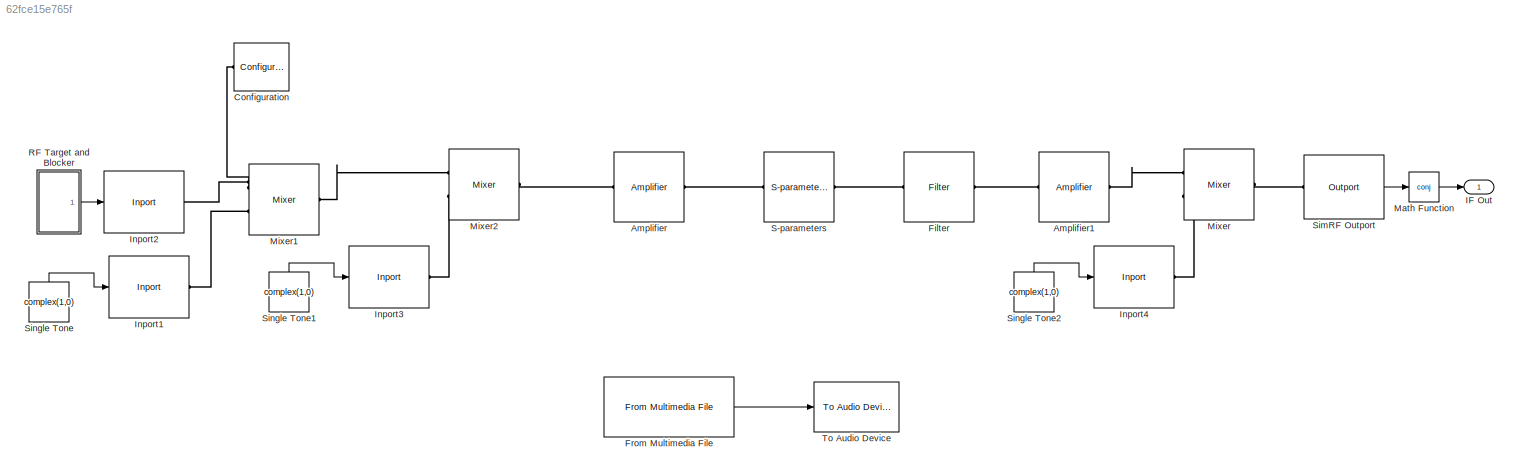
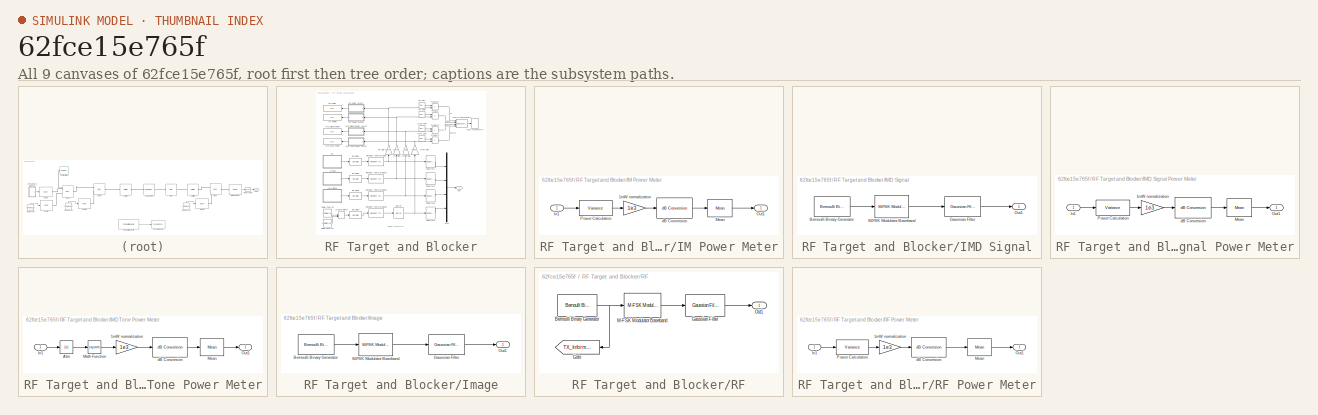
[diagram: thumbnail index - all 9 canvases of the model, root first then tree order]
MODEL slx_62fce15e765f
KIND model
CONFIG AbsTol = auto
CONFIG FixedStep = auto
CONFIG MaxStep = auto
CONFIG MinStep = auto
CONFIG RelTol = 1e-3
CONFIG SampleTimeConstraint = Unconstrained
CONFIG Solver = VariableStepAuto
CONFIG SolverMode = Auto
CONFIG SolverName = VariableStepAuto
CONFIG StartTime = 0.0
CONFIG StopTime = 10.0
BLOCK [Reference] Amplifier  REF=simrfV2elements/Amplifier
  Ports = [0, 0, 0, 0, 0, 1, 1]
  SourceBlock = simrfV2elements/Amplifier
  SourceType = Amplifier
BLOCK [Reference] Amplifier1  REF=simrfV2elements/Amplifier
  Ports = [0, 0, 0, 0, 0, 1, 1]
  SourceBlock = simrfV2elements/Amplifier
  SourceType = Amplifier
BLOCK [Reference] Configuration  REF=simrfV2util1/Configuration
  Ports = [0, 0, 0, 0, 0, 1]
  SourceBlock = simrfV2util1/Configuration
  SourceType = Configuration
BLOCK [Reference] Filter  REF=simrfV2elements/Filter
  Ports = [0, 0, 0, 0, 0, 1, 1]
  SourceBlock = simrfV2elements/Filter
  SourceType = Filter
BLOCK [Reference] From Multimedia File  REF=dspvision/From Multimedia File
  Ports = [0, 1]
  SourceBlock = dspvision/From Multimedia File
  SourceType = From Multimedia File
BLOCK [Outport] IF Out
  IconDisplay = Port number
BLOCK [Reference] Inport1  REF=simrfV2util1/Inport
  Ports = [1, 0, 0, 0, 0, 0, 1]
  SourceBlock = simrfV2util1/Inport
  SourceType = Inport
BLOCK [Reference] Inport2  REF=simrfV2util1/Inport
  Ports = [1, 0, 0, 0, 0, 0, 1]
  SourceBlock = simrfV2util1/Inport
  SourceType = Inport
BLOCK [Reference] Inport3  REF=simrfV2util1/Inport
  Ports = [1, 0, 0, 0, 0, 0, 1]
  SourceBlock = simrfV2util1/Inport
  SourceType = Inport
BLOCK [Reference] Inport4  REF=simrfV2util1/Inport
  Ports = [1, 0, 0, 0, 0, 0, 1]
  SourceBlock = simrfV2util1/Inport
  SourceType = Inport
BLOCK [Math] Math Function
  Operator = conj
  Ports = [1, 1]
BLOCK [Reference] Mixer  REF=simrfV2elements/Mixer
  Ports = [0, 0, 0, 0, 0, 2, 1]
  SourceBlock = simrfV2elements/Mixer
  SourceType = Mixer
BLOCK [Reference] Mixer1  REF=simrfV2elements/Mixer
  Ports = [0, 0, 0, 0, 0, 2, 1]
  SourceBlock = simrfV2elements/Mixer
  SourceType = Mixer
BLOCK [Reference] Mixer2  REF=simrfV2elements/Mixer
  Ports = [0, 0, 0, 0, 0, 2, 1]
  SourceBlock = simrfV2elements/Mixer
  SourceType = Mixer
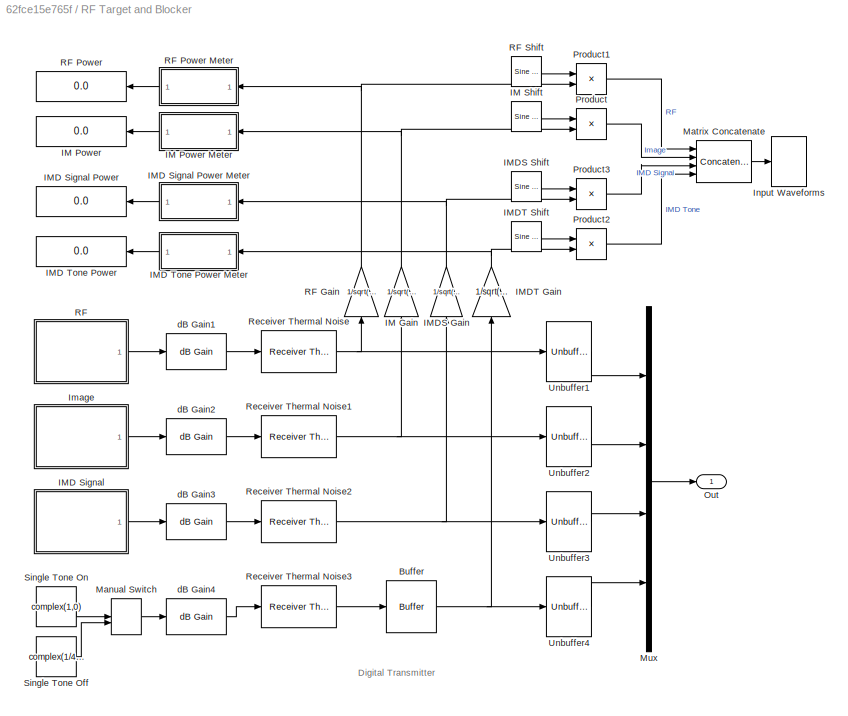
BLOCK [SubSystem] RF Target and Blocker
  Ports = [0, 1]
  RequestExecContextInheritance = off
  Variant = off
BLOCK [Buffer] RF Target and Blocker/Buffer
  N = SLIF_PSF_SampPerSym*SLIF_Frame
  TreatMby1Signals = One channel
BLOCK [Gain] RF Target and Blocker/IM Gain
  Gain = 1/sqrt(2)
  OutDataTypeStr = Inherit: Inherit via internal rule
  ParamDataTypeStr = Inherit: Inherit via internal rule
  SaturateOnIntegerOverflow = off
BLOCK [Display] RF Target and Blocker/IM Power
  Decimation = 1
  Ports = [1]
BLOCK [SubSystem] RF Target and Blocker/IM Power Meter
  Ports = [1, 1]
  RequestExecContextInheritance = off
  Variant = off
BLOCK [Gain] RF Target and Blocker/IM Power Meter/1mW normalization
  Gain = 1e3
  OutDataTypeStr = Inherit: Inherit via internal rule
  ParamDataTypeStr = Inherit: Inherit via internal rule
  SaturateOnIntegerOverflow = off
BLOCK [Inport] RF Target and Blocker/IM Power Meter/In1
  IconDisplay = Port number
BLOCK [Reference] RF Target and Blocker/IM Power Meter/Mean  REF=dspstat3/Mean
  Ports = [1, 1]
  SourceBlock = dspstat3/Mean
  SourceType = Mean
  UserDataPersistent = on
BLOCK [Outport] RF Target and Blocker/IM Power Meter/Out1
  IconDisplay = Port number
BLOCK [Reference] RF Target and Blocker/IM Power Meter/Power Calculation  REF=dspstat3/Variance
  Ports = [1, 1]
  SourceBlock = dspstat3/Variance
  SourceType = Variance
  UserDataPersistent = on
BLOCK [Reference] RF Target and Blocker/IM Power Meter/dB Conversion  REF=dspmathops/dB Conversion
  Ports = [1, 1]
  SourceBlock = dspmathops/dB Conversion
  SourceType = dB Conversion
BLOCK [Reference] RF Target and Blocker/IM Shift  REF=dspsrcs4/Sine Wave
  Ports = [0, 1]
  SourceBlock = dspsrcs4/Sine Wave
  SourceType = Sine Wave
BLOCK [SubSystem] RF Target and Blocker/IMD Signal
  Ports = [0, 1]
  RequestExecContextInheritance = off
  Variant = off
BLOCK [Display] RF Target and Blocker/IMD Signal Power
  Decimation = 1
  Ports = [1]
BLOCK [SubSystem] RF Target and Blocker/IMD Signal Power Meter
  Ports = [1, 1]
  RequestExecContextInheritance = off
  Variant = off
BLOCK [Gain] RF Target and Blocker/IMD Signal Power Meter/1mW normalization
  Gain = 1e3
  OutDataTypeStr = Inherit: Inherit via internal rule
  ParamDataTypeStr = Inherit: Inherit via internal rule
  SaturateOnIntegerOverflow = off
BLOCK [Inport] RF Target and Blocker/IMD Signal Power Meter/In1
  IconDisplay = Port number
BLOCK [Reference] RF Target and Blocker/IMD Signal Power Meter/Mean  REF=dspstat3/Mean
  Ports = [1, 1]
  SourceBlock = dspstat3/Mean
  SourceType = Mean
  UserDataPersistent = on
BLOCK [Outport] RF Target and Blocker/IMD Signal Power Meter/Out1
  IconDisplay = Port number
BLOCK [Reference] RF Target and Blocker/IMD Signal Power Meter/Power Calculation  REF=dspstat3/Variance
  Ports = [1, 1]
  SourceBlock = dspstat3/Variance
  SourceType = Variance
  UserDataPersistent = on
BLOCK [Reference] RF Target and Blocker/IMD Signal Power Meter/dB Conversion  REF=dspmathops/dB Conversion
  Ports = [1, 1]
  SourceBlock = dspmathops/dB Conversion
  SourceType = dB Conversion
BLOCK [Reference] RF Target and Blocker/IMD Signal/Bernoulli Binary Generator  REF=commrandsrc2/Bernoulli Binary
Generator
  Ports = [0, 1]
  SourceBlock = commrandsrc2/Bernoulli Binary\nGenerator
  SourceType = Bernoulli Binary Generator
BLOCK [Reference] RF Target and Blocker/IMD Signal/Gaussian Filter  REF=commobslib/Gaussian Filter
  Ports = [1, 1]
  SourceBlock = commobslib/Gaussian Filter
  SourceType = Gaussian Filter
  UserDataPersistent = on
BLOCK [Reference] RF Target and Blocker/IMD Signal/M-FSK Modulator Baseband  REF=commdigbbndfm2/M-FSK
Modulator
Baseband
  Ports = [1, 1]
  SourceBlock = commdigbbndfm2/M-FSK\nModulator\nBaseband
  SourceType = M-FSK Modulator Baseband
  UserDataPersistent = on
BLOCK [Outport] RF Target and Blocker/IMD Signal/Out1
  IconDisplay = Port number
BLOCK [Display] RF Target and Blocker/IMD Tone Power
  Decimation = 1
  Ports = [1]
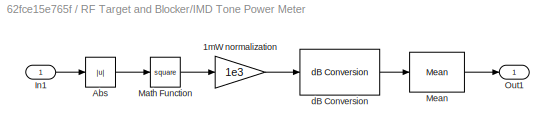
BLOCK [SubSystem] RF Target and Blocker/IMD Tone Power Meter
  Ports = [1, 1]
  RequestExecContextInheritance = off
  Variant = off
BLOCK [Gain] RF Target and Blocker/IMD Tone Power Meter/1mW normalization
  Gain = 1e3
  OutDataTypeStr = Inherit: Inherit via internal rule
  ParamDataTypeStr = Inherit: Inherit via internal rule
  SaturateOnIntegerOverflow = off
BLOCK [Abs] RF Target and Blocker/IMD Tone Power Meter/Abs
  SaturateOnIntegerOverflow = off
BLOCK [Inport] RF Target and Blocker/IMD Tone Power Meter/In1
  IconDisplay = Port number
BLOCK [Math] RF Target and Blocker/IMD Tone Power Meter/Math Function
  Operator = square
  Ports = [1, 1]
BLOCK [Reference] RF Target and Blocker/IMD Tone Power Meter/Mean  REF=dspstat3/Mean
  Ports = [1, 1]
  SourceBlock = dspstat3/Mean
  SourceType = Mean
  UserDataPersistent = on
BLOCK [Outport] RF Target and Blocker/IMD Tone Power Meter/Out1
  IconDisplay = Port number
BLOCK [Reference] RF Target and Blocker/IMD Tone Power Meter/dB Conversion  REF=dspmathops/dB Conversion
  Ports = [1, 1]
  SourceBlock = dspmathops/dB Conversion
  SourceType = dB Conversion
BLOCK [Gain] RF Target and Blocker/IMDS Gain
  Gain = 1/sqrt(2)
  OutDataTypeStr = Inherit: Inherit via internal rule
  ParamDataTypeStr = Inherit: Inherit via internal rule
  SaturateOnIntegerOverflow = off
BLOCK [Reference] RF Target and Blocker/IMDS Shift  REF=dspsrcs4/Sine Wave
  Ports = [0, 1]
  SourceBlock = dspsrcs4/Sine Wave
  SourceType = Sine Wave
BLOCK [Gain] RF Target and Blocker/IMDT Gain
  Gain = 1/sqrt(2)
  OutDataTypeStr = Inherit: Inherit via internal rule
  ParamDataTypeStr = Inherit: Inherit via internal rule
  SaturateOnIntegerOverflow = off
BLOCK [Reference] RF Target and Blocker/IMDT Shift  REF=dspsrcs4/Sine Wave
  Ports = [0, 1]
  SourceBlock = dspsrcs4/Sine Wave
  SourceType = Sine Wave
BLOCK [SubSystem] RF Target and Blocker/Image
  Ports = [0, 1]
  RequestExecContextInheritance = off
  Variant = off
BLOCK [Reference] RF Target and Blocker/Image/Bernoulli Binary Generator  REF=commrandsrc2/Bernoulli Binary
Generator
  Ports = [0, 1]
  SourceBlock = commrandsrc2/Bernoulli Binary\nGenerator
  SourceType = Bernoulli Binary Generator
BLOCK [Reference] RF Target and Blocker/Image/Gaussian Filter  REF=commobslib/Gaussian Filter
  Ports = [1, 1]
  SourceBlock = commobslib/Gaussian Filter
  SourceType = Gaussian Filter
  UserDataPersistent = on
BLOCK [Reference] RF Target and Blocker/Image/M-FSK Modulator Baseband  REF=commdigbbndfm2/M-FSK
Modulator
Baseband
  Ports = [1, 1]
  SourceBlock = commdigbbndfm2/M-FSK\nModulator\nBaseband
  SourceType = M-FSK Modulator Baseband
  UserDataPersistent = on
BLOCK [Outport] RF Target and Blocker/Image/Out1
  IconDisplay = Port number
BLOCK [SpectrumAnalyzer] RF Target and Blocker/Input Waveforms
  Ports = [1]
  ScopeSpecificationString = spbscopes.SpectrumAnalyzerBlockCfg('CurrentConfiguration', extmgr.ConfigurationSet(extmgr.Configuration('Core','General UI',true,'ShowNewAction',false,'ShowLoadConfigSet',false,'ShowSaveConfigSet',false,'ShowConfiguration',false,'ShowCloseAll',false,'DisplayFullSourceName',true,'MessageLogAutoOpenMode','for warn/fail messages','MessageLogDialogPosition',[20 520 450 500],'ShowMainToolbar',true,'Sho...<+8134ch>
BLOCK [ManualSwitch] RF Target and Blocker/Manual Switch
  CurrentSetting = 0
BLOCK [Concatenate] RF Target and Blocker/Matrix Concatenate
  ConcatenateDimension = 2
  Mode = Multidimensional array
  NumInputs = 4
  Ports = [4, 1]
BLOCK [Mux] RF Target and Blocker/Mux
  DisplayOption = bar
  Ports = [4, 1]
BLOCK [Outport] RF Target and Blocker/Out
  IconDisplay = Port number
BLOCK [Product] RF Target and Blocker/Product
  InputSameDT = off
  OutDataTypeStr = Inherit: Inherit via internal rule
  Ports = [2, 1]
  SaturateOnIntegerOverflow = off
BLOCK [Product] RF Target and Blocker/Product1
  InputSameDT = off
  OutDataTypeStr = Inherit: Inherit via internal rule
  Ports = [2, 1]
  SaturateOnIntegerOverflow = off
BLOCK [Product] RF Target and Blocker/Product2
  InputSameDT = off
  OutDataTypeStr = Inherit: Inherit via internal rule
  Ports = [2, 1]
  SaturateOnIntegerOverflow = off
BLOCK [Product] RF Target and Blocker/Product3
  InputSameDT = off
  OutDataTypeStr = Inherit: Inherit via internal rule
  Ports = [2, 1]
  SaturateOnIntegerOverflow = off
BLOCK [SubSystem] RF Target and Blocker/RF
  Ports = [0, 1]
  RequestExecContextInheritance = off
  Variant = off
BLOCK [Gain] RF Target and Blocker/RF Gain
  Gain = 1/sqrt(2)
  OutDataTypeStr = Inherit: Inherit via internal rule
  ParamDataTypeStr = Inherit: Inherit via internal rule
  SaturateOnIntegerOverflow = off
BLOCK [Display] RF Target and Blocker/RF Power
  Decimation = 1
  Ports = [1]
BLOCK [SubSystem] RF Target and Blocker/RF Power Meter
  Ports = [1, 1]
  RequestExecContextInheritance = off
  Variant = off
BLOCK [Gain] RF Target and Blocker/RF Power Meter/1mW normalization
  Gain = 1e3
  OutDataTypeStr = Inherit: Inherit via internal rule
  ParamDataTypeStr = Inherit: Inherit via internal rule
  SaturateOnIntegerOverflow = off
BLOCK [Inport] RF Target and Blocker/RF Power Meter/In1
  IconDisplay = Port number
BLOCK [Reference] RF Target and Blocker/RF Power Meter/Mean  REF=dspstat3/Mean
  Ports = [1, 1]
  SourceBlock = dspstat3/Mean
  SourceType = Mean
  UserDataPersistent = on
BLOCK [Outport] RF Target and Blocker/RF Power Meter/Out1
  IconDisplay = Port number
BLOCK [Reference] RF Target and Blocker/RF Power Meter/Power Calculation  REF=dspstat3/Variance
  Ports = [1, 1]
  SourceBlock = dspstat3/Variance
  SourceType = Variance
  UserDataPersistent = on
BLOCK [Reference] RF Target and Blocker/RF Power Meter/dB Conversion  REF=dspmathops/dB Conversion
  Ports = [1, 1]
  SourceBlock = dspmathops/dB Conversion
  SourceType = dB Conversion
BLOCK [Reference] RF Target and Blocker/RF Shift  REF=dspsrcs4/Sine Wave
  Ports = [0, 1]
  SourceBlock = dspsrcs4/Sine Wave
  SourceType = Sine Wave
BLOCK [Reference] RF Target and Blocker/RF/Bernoulli Binary Generator  REF=commrandsrc2/Bernoulli Binary
Generator
  Ports = [0, 1]
  SourceBlock = commrandsrc2/Bernoulli Binary\nGenerator
  SourceType = Bernoulli Binary Generator
BLOCK [Reference] RF Target and Blocker/RF/Gaussian Filter  REF=commobslib/Gaussian Filter
  Ports = [1, 1]
  SourceBlock = commobslib/Gaussian Filter
  SourceType = Gaussian Filter
  UserDataPersistent = on
BLOCK [Goto] RF Target and Blocker/RF/Goto
  GotoTag = TX_Information
  TagVisibility = global
BLOCK [Reference] RF Target and Blocker/RF/M-FSK Modulator Baseband  REF=commdigbbndfm2/M-FSK
Modulator
Baseband
  Ports = [1, 1]
  SourceBlock = commdigbbndfm2/M-FSK\nModulator\nBaseband
  SourceType = M-FSK Modulator Baseband
  UserDataPersistent = on
BLOCK [Outport] RF Target and Blocker/RF/Out1
  IconDisplay = Port number
BLOCK [Reference] RF Target and Blocker/Receiver Thermal Noise  REF=commrflib2/Receiver
Thermal Noise
  Ports = [1, 1]
  SourceBlock = commrflib2/Receiver\nThermal Noise
  SourceType = Receiver Thermal Noise
BLOCK [Reference] RF Target and Blocker/Receiver Thermal Noise1  REF=commrflib2/Receiver
Thermal Noise
  Ports = [1, 1]
  SourceBlock = commrflib2/Receiver\nThermal Noise
  SourceType = Receiver Thermal Noise
BLOCK [Reference] RF Target and Blocker/Receiver Thermal Noise2  REF=commrflib2/Receiver
Thermal Noise
  Ports = [1, 1]
  SourceBlock = commrflib2/Receiver\nThermal Noise
  SourceType = Receiver Thermal Noise
BLOCK [Reference] RF Target and Blocker/Receiver Thermal Noise3  REF=commrflib2/Receiver
Thermal Noise
  Ports = [1, 1]
  SourceBlock = commrflib2/Receiver\nThermal Noise
  SourceType = Receiver Thermal Noise
BLOCK [Constant] RF Target and Blocker/Single Tone Off
  Value = complex(1/4,0)
BLOCK [Constant] RF Target and Blocker/Single Tone On
  Value = complex(1,0)
BLOCK [Unbuffer] RF Target and Blocker/Unbuffer1
  Ports = [1, 1]
  SampleBasedProcessing = Same as frame based
BLOCK [Unbuffer] RF Target and Blocker/Unbuffer2
  Ports = [1, 1]
  SampleBasedProcessing = Same as frame based
BLOCK [Unbuffer] RF Target and Blocker/Unbuffer3
  Ports = [1, 1]
  SampleBasedProcessing = Same as frame based
BLOCK [Unbuffer] RF Target and Blocker/Unbuffer4
  Ports = [1, 1]
  SampleBasedProcessing = Same as frame based
BLOCK [Reference] RF Target and Blocker/dB Gain1  REF=dspmathops/dB Gain
  Ports = [1, 1]
  SourceBlock = dspmathops/dB Gain
  SourceType = dB Gain
BLOCK [Reference] RF Target and Blocker/dB Gain2  REF=dspmathops/dB Gain
  Ports = [1, 1]
  SourceBlock = dspmathops/dB Gain
  SourceType = dB Gain
BLOCK [Reference] RF Target and Blocker/dB Gain3  REF=dspmathops/dB Gain
  Ports = [1, 1]
  SourceBlock = dspmathops/dB Gain
  SourceType = dB Gain
BLOCK [Reference] RF Target and Blocker/dB Gain4  REF=dspmathops/dB Gain
  Ports = [1, 1]
  SourceBlock = dspmathops/dB Gain
  SourceType = dB Gain
BLOCK [Reference] S-parameters  REF=simrfV2elements/S-parameters
  Ports = [0, 0, 0, 0, 0, 1, 1]
  SourceBlock = simrfV2elements/S-parameters
  SourceType = S-parameters
  UserDataPersistent = on
BLOCK [Reference] SimRF Outport  REF=simrfV2util1/Outport
  Ports = [0, 1, 0, 0, 0, 1]
  SourceBlock = simrfV2util1/Outport
  SourceType = Outport
BLOCK [Constant] Single Tone
  Value = complex(1,0)
BLOCK [Constant] Single Tone1
  Value = complex(1,0)
BLOCK [Constant] Single Tone2
  Value = complex(1,0)
BLOCK [Reference] To Audio Device  REF=dspsnks4/To Audio
Device
  Ports = [1]
  SourceBlock = dspsnks4/To Audio\nDevice
  SourceType = To Audio Device
ANNOTATION RF Target and Blocker: Digital Transmitter
LINE From Multimedia File:1 -> To Audio Device:1
LINE Math Function:1 -> IF Out:1
NET RF Target and Blocker/Buffer:1 -> RF Target and Blocker/IMDT Gain:1, RF Target and Blocker/Unbuffer4:1
NET RF Target and Blocker/IM Gain:1 -> RF Target and Blocker/IM Power Meter:1, RF Target and Blocker/Product:2
LINE RF Target and Blocker/IM Power Meter/1mW normalization:1 -> RF Target and Blocker/IM Power Meter/dB Conversion:1
LINE RF Target and Blocker/IM Power Meter/In1:1 -> RF Target and Blocker/IM Power Meter/Power Calculation:1
LINE RF Target and Blocker/IM Power Meter/Mean:1 -> RF Target and Blocker/IM Power Meter/Out1:1
LINE RF Target and Blocker/IM Power Meter/Power Calculation:1 -> RF Target and Blocker/IM Power Meter/1mW normalization:1
LINE RF Target and Blocker/IM Power Meter/dB Conversion:1 -> RF Target and Blocker/IM Power Meter/Mean:1
LINE RF Target and Blocker/IM Power Meter:1 -> RF Target and Blocker/IM Power:1
LINE RF Target and Blocker/IM Shift:1 -> RF Target and Blocker/Product:1
LINE RF Target and Blocker/IMD Signal Power Meter/1mW normalization:1 -> RF Target and Blocker/IMD Signal Power Meter/dB Conversion:1
LINE RF Target and Blocker/IMD Signal Power Meter/In1:1 -> RF Target and Blocker/IMD Signal Power Meter/Power Calculation:1
LINE RF Target and Blocker/IMD Signal Power Meter/Mean:1 -> RF Target and Blocker/IMD Signal Power Meter/Out1:1
LINE RF Target and Blocker/IMD Signal Power Meter/Power Calculation:1 -> RF Target and Blocker/IMD Signal Power Meter/1mW normalization:1
LINE RF Target and Blocker/IMD Signal Power Meter/dB Conversion:1 -> RF Target and Blocker/IMD Signal Power Meter/Mean:1
LINE RF Target and Blocker/IMD Signal Power Meter:1 -> RF Target and Blocker/IMD Signal Power:1
LINE RF Target and Blocker/IMD Signal/Bernoulli Binary Generator:1 -> RF Target and Blocker/IMD Signal/M-FSK Modulator Baseband:1
LINE RF Target and Blocker/IMD Signal/Gaussian Filter:1 -> RF Target and Blocker/IMD Signal/Out1:1
LINE RF Target and Blocker/IMD Signal/M-FSK Modulator Baseband:1 -> RF Target and Blocker/IMD Signal/Gaussian Filter:1
LINE RF Target and Blocker/IMD Signal:1 -> RF Target and Blocker/dB Gain3:1
LINE RF Target and Blocker/IMD Tone Power Meter/1mW normalization:1 -> RF Target and Blocker/IMD Tone Power Meter/dB Conversion:1
LINE RF Target and Blocker/IMD Tone Power Meter/Abs:1 -> RF Target and Blocker/IMD Tone Power Meter/Math Function:1
LINE RF Target and Blocker/IMD Tone Power Meter/In1:1 -> RF Target and Blocker/IMD Tone Power Meter/Abs:1
LINE RF Target and Blocker/IMD Tone Power Meter/Math Function:1 -> RF Target and Blocker/IMD Tone Power Meter/1mW normalization:1
LINE RF Target and Blocker/IMD Tone Power Meter/Mean:1 -> RF Target and Blocker/IMD Tone Power Meter/Out1:1
LINE RF Target and Blocker/IMD Tone Power Meter/dB Conversion:1 -> RF Target and Blocker/IMD Tone Power Meter/Mean:1
LINE RF Target and Blocker/IMD Tone Power Meter:1 -> RF Target and Blocker/IMD Tone Power:1
NET RF Target and Blocker/IMDS Gain:1 -> RF Target and Blocker/IMD Signal Power Meter:1, RF Target and Blocker/Product3:2
LINE RF Target and Blocker/IMDS Shift:1 -> RF Target and Blocker/Product3:1
NET RF Target and Blocker/IMDT Gain:1 -> RF Target and Blocker/IMD Tone Power Meter:1, RF Target and Blocker/Product2:2
LINE RF Target and Blocker/IMDT Shift:1 -> RF Target and Blocker/Product2:1
LINE RF Target and Blocker/Image/Bernoulli Binary Generator:1 -> RF Target and Blocker/Image/M-FSK Modulator Baseband:1
LINE RF Target and Blocker/Image/Gaussian Filter:1 -> RF Target and Blocker/Image/Out1:1
LINE RF Target and Blocker/Image/M-FSK Modulator Baseband:1 -> RF Target and Blocker/Image/Gaussian Filter:1
LINE RF Target and Blocker/Image:1 -> RF Target and Blocker/dB Gain2:1
LINE RF Target and Blocker/Manual Switch:1 -> RF Target and Blocker/dB Gain4:1
LINE RF Target and Blocker/Matrix Concatenate:1 -> RF Target and Blocker/Input Waveforms:1
LINE RF Target and Blocker/Mux:1 -> RF Target and Blocker/Out:1
LINE RF Target and Blocker/Product1:1 -> RF Target and Blocker/Matrix Concatenate:1
LINE RF Target and Blocker/Product2:1 -> RF Target and Blocker/Matrix Concatenate:4
LINE RF Target and Blocker/Product3:1 -> RF Target and Blocker/Matrix Concatenate:3
LINE RF Target and Blocker/Product:1 -> RF Target and Blocker/Matrix Concatenate:2
NET RF Target and Blocker/RF Gain:1 -> RF Target and Blocker/Product1:2, RF Target and Blocker/RF Power Meter:1
LINE RF Target and Blocker/RF Power Meter/1mW normalization:1 -> RF Target and Blocker/RF Power Meter/dB Conversion:1
LINE RF Target and Blocker/RF Power Meter/In1:1 -> RF Target and Blocker/RF Power Meter/Power Calculation:1
LINE RF Target and Blocker/RF Power Meter/Mean:1 -> RF Target and Blocker/RF Power Meter/Out1:1
LINE RF Target and Blocker/RF Power Meter/Power Calculation:1 -> RF Target and Blocker/RF Power Meter/1mW normalization:1
LINE RF Target and Blocker/RF Power Meter/dB Conversion:1 -> RF Target and Blocker/RF Power Meter/Mean:1
LINE RF Target and Blocker/RF Power Meter:1 -> RF Target and Blocker/RF Power:1
LINE RF Target and Blocker/RF Shift:1 -> RF Target and Blocker/Product1:1
NET RF Target and Blocker/RF/Bernoulli Binary Generator:1 -> RF Target and Blocker/RF/Goto:1, RF Target and Blocker/RF/M-FSK Modulator Baseband:1
LINE RF Target and Blocker/RF/Gaussian Filter:1 -> RF Target and Blocker/RF/Out1:1
LINE RF Target and Blocker/RF/M-FSK Modulator Baseband:1 -> RF Target and Blocker/RF/Gaussian Filter:1
LINE RF Target and Blocker/RF:1 -> RF Target and Blocker/dB Gain1:1
NET RF Target and Blocker/Receiver Thermal Noise1:1 -> RF Target and Blocker/IM Gain:1, RF Target and Blocker/Unbuffer2:1
NET RF Target and Blocker/Receiver Thermal Noise2:1 -> RF Target and Blocker/IMDS Gain:1, RF Target and Blocker/Unbuffer3:1
LINE RF Target and Blocker/Receiver Thermal Noise3:1 -> RF Target and Blocker/Buffer:1
NET RF Target and Blocker/Receiver Thermal Noise:1 -> RF Target and Blocker/RF Gain:1, RF Target and Blocker/Unbuffer1:1
LINE RF Target and Blocker/Single Tone Off:1 -> RF Target and Blocker/Manual Switch:2
LINE RF Target and Blocker/Single Tone On:1 -> RF Target and Blocker/Manual Switch:1
LINE RF Target and Blocker/Unbuffer1:1 -> RF Target and Blocker/Mux:1
LINE RF Target and Blocker/Unbuffer2:1 -> RF Target and Blocker/Mux:2
LINE RF Target and Blocker/Unbuffer3:1 -> RF Target and Blocker/Mux:3
LINE RF Target and Blocker/Unbuffer4:1 -> RF Target and Blocker/Mux:4
LINE RF Target and Blocker/dB Gain1:1 -> RF Target and Blocker/Receiver Thermal Noise:1
LINE RF Target and Blocker/dB Gain2:1 -> RF Target and Blocker/Receiver Thermal Noise1:1
LINE RF Target and Blocker/dB Gain3:1 -> RF Target and Blocker/Receiver Thermal Noise2:1
LINE RF Target and Blocker/dB Gain4:1 -> RF Target and Blocker/Receiver Thermal Noise3:1
LINE RF Target and Blocker:1 -> Inport2:1
LINE SimRF Outport:1 -> Math Function:1
LINE Single Tone1:1 -> Inport3:1
LINE Single Tone2:1 -> Inport4:1
LINE Single Tone:1 -> Inport1:1
PLINE Amplifier1:LConn1 -- Filter:RConn1
PLINE Amplifier1:RConn1 -- Mixer:LConn1
PLINE Amplifier:LConn1 -- Mixer2:RConn1
PLINE Amplifier:RConn1 -- S-parameters:LConn1
PNET net1: Configuration:LConn1 -- Inport2:RConn1 -- Mixer1:LConn1
PLINE Filter:LConn1 -- S-parameters:RConn1
PLINE Inport1:RConn1 -- Mixer1:LConn2
PLINE Inport3:RConn1 -- Mixer2:LConn2
PLINE Inport4:RConn1 -- Mixer:LConn2
PLINE Mixer1:RConn1 -- Mixer2:LConn1
PLINE Mixer:RConn1 -- SimRF Outport:LConn1
note: NET lines group one-source signal fan-out (src -> all destinations, sorted); 1:1 wires keep LINE; PNET lines group multi-terminal physical nets as a canonical sorted terminal list (undirected conserving connections); 2-terminal nets keep the pairwise PLINE form
